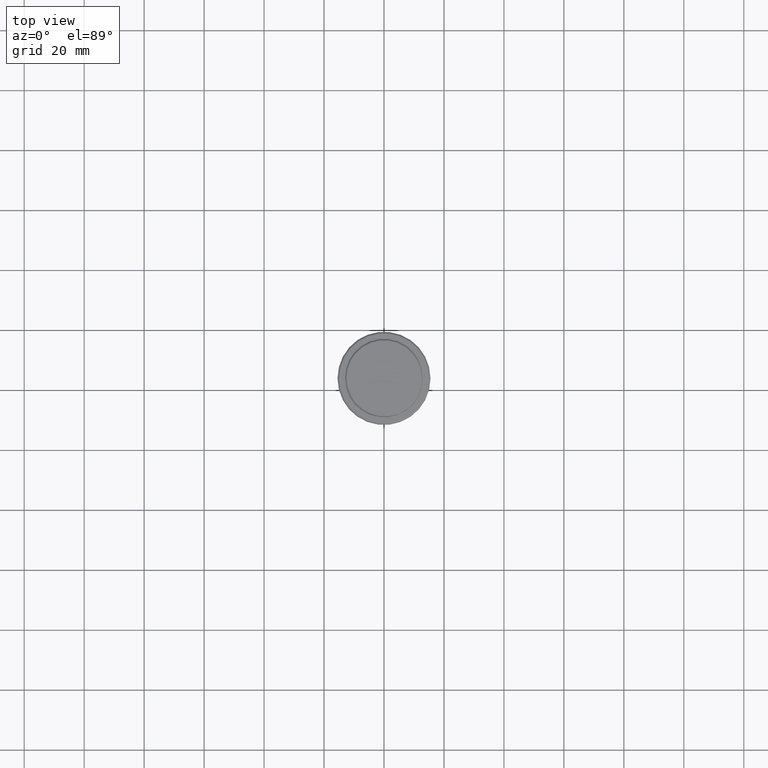
[diagram: clean part render]
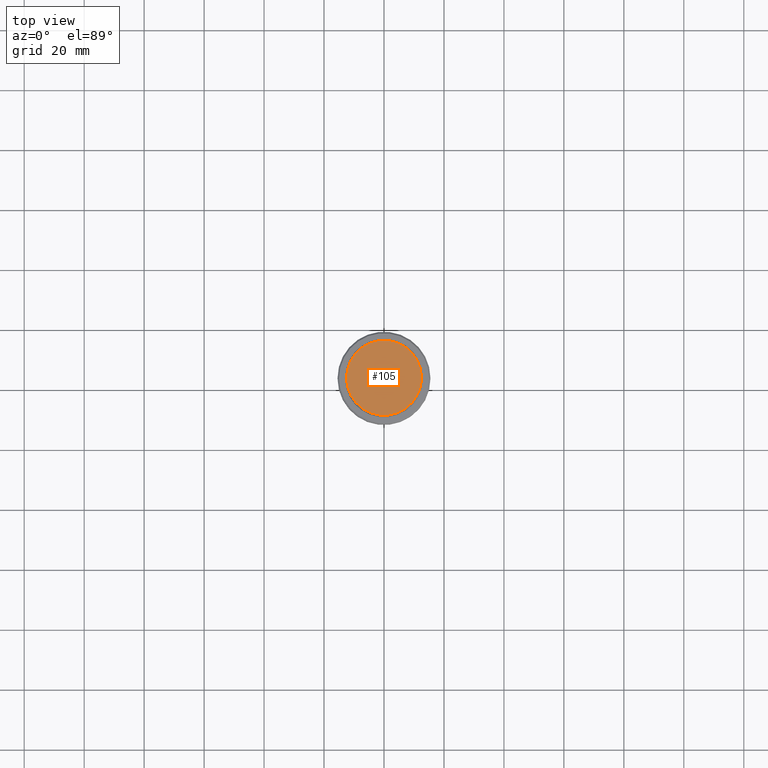
[diagram: same view with one face highlighted and labeled with its STEP entity id]
A machine part, top view. The second image highlights one B-rep face of the part: STEP entity #105.
In plain terms, the highlighted planar face has unit normal (0, -0, 1).
Its self-contained STEP definition (entity closure, byte-faithful):
#81 = DIRECTION ( 'NONE',  ( -0.000000000000000000, -0.000000000000000000, 1.000000000000000000 ) ) ;
#87 = CARTESIAN_POINT ( 'NONE',  ( 0.000000000000000000, 0.000000000000000000, 0.000000000000000000 ) ) ;
#105 = ADVANCED_FACE ( 'NONE', ( #274 ), #169, .T. ) ;
#119 = CARTESIAN_POINT ( 'NONE',  ( 12.50000000000001243, 1.561424668912876097E-15, 0.000000000000000000 ) ) ;
#169 = PLANE ( 'NONE',  #1071 ) ;
#249 = AXIS2_PLACEMENT_3D ( 'NONE', #442, #910, #297 ) ;
#274 = FACE_OUTER_BOUND ( 'NONE', #1209, .T. ) ;
#297 = DIRECTION ( 'NONE',  ( 1.000000000000000000, 0.000000000000000000, 0.000000000000000000 ) ) ;
#426 = CIRCLE ( 'NONE', #1285, 12.50000000000001243 ) ;
#442 = CARTESIAN_POINT ( 'NONE',  ( 0.000000000000000000, 0.000000000000000000, 0.000000000000000000 ) ) ;
#506 = DIRECTION ( 'NONE',  ( 1.000000000000000000, 0.000000000000000000, 0.000000000000000000 ) ) ;
#588 = CARTESIAN_POINT ( 'NONE',  ( -12.50000000000001243, 0.000000000000000000, 0.000000000000000000 ) ) ;
#665 = ORIENTED_EDGE ( 'NONE', *, *, #1211, .T. ) ;
#748 = CIRCLE ( 'NONE', #249, 12.50000000000001243 ) ;
#910 = DIRECTION ( 'NONE',  ( -0.000000000000000000, -0.000000000000000000, 1.000000000000000000 ) ) ;
#940 = CARTESIAN_POINT ( 'NONE',  ( 0.000000000000000000, 0.000000000000000000, 0.000000000000000000 ) ) ;
#1045 = DIRECTION ( 'NONE',  ( 0.000000000000000000, -0.000000000000000000, 1.000000000000000000 ) ) ;
#1049 = VERTEX_POINT ( 'NONE', #588 ) ;
#1071 = AXIS2_PLACEMENT_3D ( 'NONE', #87, #1045, #506 ) ;
#1209 = EDGE_LOOP ( 'NONE', ( #1274, #665 ) ) ;
#1211 = EDGE_CURVE ( 'NONE', #1235, #1049, #748, .T. ) ;
#1235 = VERTEX_POINT ( 'NONE', #119 ) ;
#1274 = ORIENTED_EDGE ( 'NONE', *, *, #1277, .T. ) ;
#1277 = EDGE_CURVE ( 'NONE', #1049, #1235, #426, .T. ) ;
#1278 = DIRECTION ( 'NONE',  ( 1.000000000000000000, 0.000000000000000000, 0.000000000000000000 ) ) ;
#1285 = AXIS2_PLACEMENT_3D ( 'NONE', #940, #81, #1278 ) ;